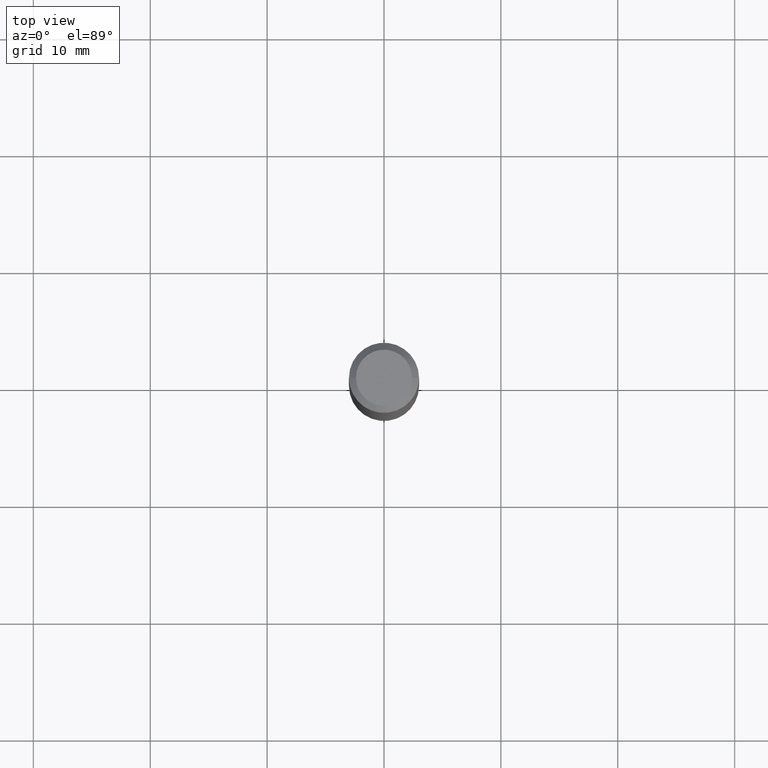
[diagram: clean part render]
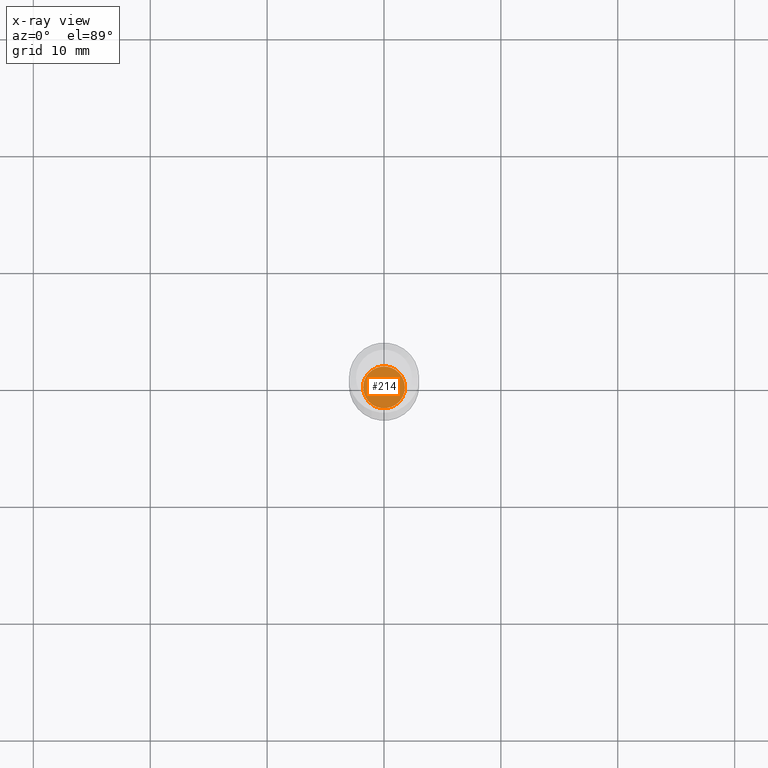
[diagram: x-ray — body ghosted, one internal face saturated and labeled with its STEP entity id]
A machine part, top view, then the same camera in x-ray: the body is ghosted and one INTERNAL B-rep face — a face not visible from any outside direction — is saturated and labeled: STEP entity #214.
In plain terms, the highlighted planar face has unit normal (-0, 0, 1).
Its self-contained STEP definition (entity closure, byte-faithful):
#12 = CARTESIAN_POINT ( 'NONE',  ( 4.621202403048053204E-29, -6.597852286011893278E-15, -1.889700000000000379 ) ) ;
#22 = EDGE_CURVE ( 'NONE', #213, #399, #412, .T. ) ;
#50 = DIRECTION ( 'NONE',  ( -2.445468806185136597E-29, 3.491481338843145583E-15, 1.000000000000000000 ) ) ;
#88 = CARTESIAN_POINT ( 'NONE',  ( -5.029850966064446794E-30, -1.393598043615739189E-14, -1.889700000000000379 ) ) ;
#89 = DIRECTION ( 'NONE',  ( 1.000000000000000000, -6.982962677686269866E-15, 0.000000000000000000 ) ) ;
#121 = FACE_OUTER_BOUND ( 'NONE', #237, .T. ) ;
#135 = CIRCLE ( 'NONE', #332, 0.07034999999999999587 ) ;
#194 = CARTESIAN_POINT ( 'NONE',  ( 0.07034999999999999587, -7.089103710387122527E-15, -1.889700000000000379 ) ) ;
#209 = CARTESIAN_POINT ( 'NONE',  ( -0.07034999999999999587, -6.095336244230551429E-15, -1.889700000000000379 ) ) ;
#213 = VERTEX_POINT ( 'NONE', #194 ) ;
#214 = ADVANCED_FACE ( 'NONE', ( #121 ), #239, .F. ) ;
#229 = DIRECTION ( 'NONE',  ( -2.438088387897960049E-29, 3.491481338843145188E-15, 1.000000000000000000 ) ) ;
#231 = EDGE_CURVE ( 'NONE', #399, #213, #135, .T. ) ;
#237 = EDGE_LOOP ( 'NONE', ( #251, #317 ) ) ;
#239 = PLANE ( 'NONE',  #357 ) ;
#245 = DIRECTION ( 'NONE',  ( 1.000000000000000000, -6.982962677686265922E-15, 4.876176775795935793E-29 ) ) ;
#251 = ORIENTED_EDGE ( 'NONE', *, *, #22, .F. ) ;
#317 = ORIENTED_EDGE ( 'NONE', *, *, #231, .F. ) ;
#318 = DIRECTION ( 'NONE',  ( -2.445468806185136597E-29, 3.491481338843145583E-15, 1.000000000000000000 ) ) ;
#323 = DIRECTION ( 'NONE',  ( 1.000000000000000000, -6.982962677686269866E-15, 0.000000000000000000 ) ) ;
#332 = AXIS2_PLACEMENT_3D ( 'NONE', #12, #318, #323 ) ;
#357 = AXIS2_PLACEMENT_3D ( 'NONE', #88, #229, #245 ) ;
#363 = CARTESIAN_POINT ( 'NONE',  ( 4.621202403048053204E-29, -6.597852286011893278E-15, -1.889700000000000379 ) ) ;
#399 = VERTEX_POINT ( 'NONE', #209 ) ;
#405 = AXIS2_PLACEMENT_3D ( 'NONE', #363, #50, #89 ) ;
#412 = CIRCLE ( 'NONE', #405, 0.07034999999999999587 ) ;